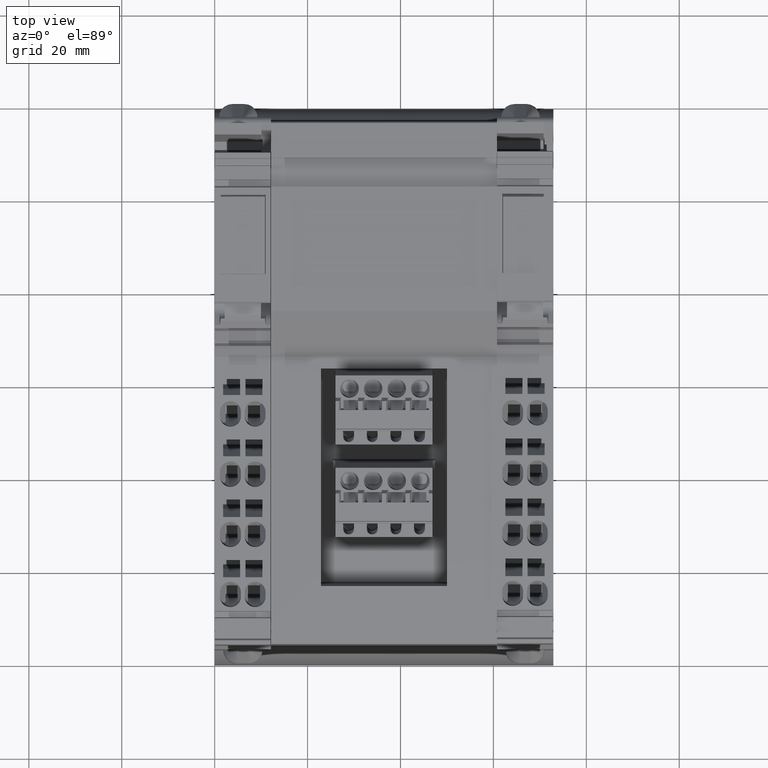
[diagram: clean part render]
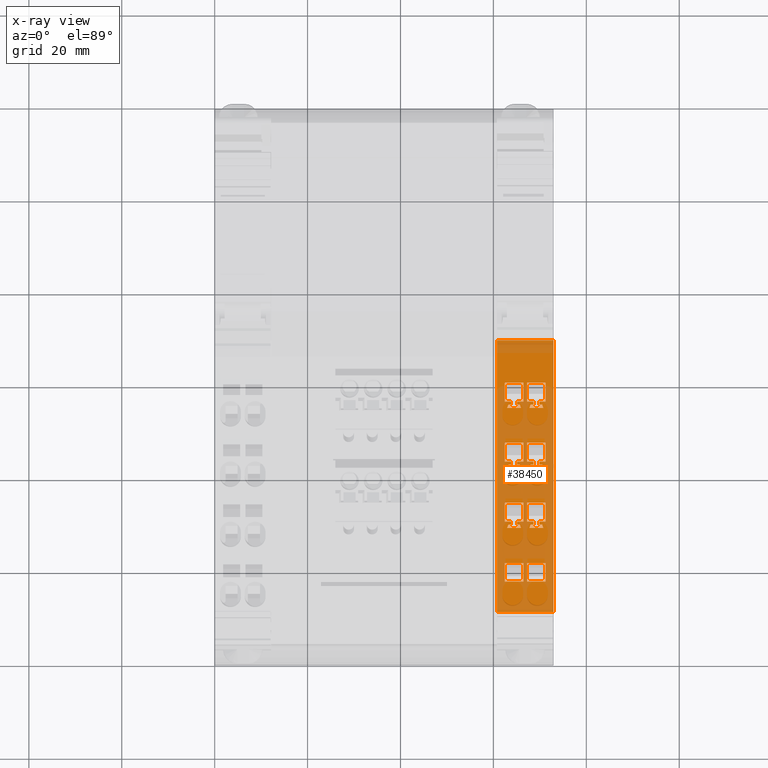
[diagram: x-ray — body ghosted, one internal face saturated and labeled with its STEP entity id]
A machine part, top view, then the same camera in x-ray: the body is ghosted and one INTERNAL B-rep face — a face not visible from any outside direction — is saturated and labeled: STEP entity #38450.
In plain terms, the highlighted planar face has unit normal (0, -0.1305, 0.9914).
Its self-contained STEP definition (entity closure, byte-faithful):
#5660=CARTESIAN_POINT('',(-78.769291021743,-58.1029388513726,
46.7999999999999));
#5670=VERTEX_POINT('',#5660);
#5700=CARTESIAN_POINT('',(0.0062482952954781,-47.7319423514905,
46.7999999999999));
#5710=DIRECTION('',(0.991444861373811,0.13052619222005,0.));
#5720=VECTOR('',#5710,1.);
#5730=LINE('',#5700,#5720);
#5740=CARTESIAN_POINT('',(-20.2913513139139,-50.4041720350718,
46.7999999999999));
#5750=VERTEX_POINT('',#5740);
#5760=EDGE_CURVE('',#5670,#5750,#5730,.T.);
#13380=CARTESIAN_POINT('',(-20.2913513139139,-50.4041720350718,58.95));
#13390=VERTEX_POINT('',#13380);
#13420=CARTESIAN_POINT('',(-50.2693739044416,-54.3508535818461,58.95));
#13430=DIRECTION('',(-0.991444861373811,-0.13052619222005,
1.55470229805303E-45));
#13440=VECTOR('',#13430,1.);
#13450=LINE('',#13420,#13440);
#13460=CARTESIAN_POINT('',(-78.769291021743,-58.1029388513726,58.95));
#13470=VERTEX_POINT('',#13460);
#13480=EDGE_CURVE('',#13390,#13470,#13450,.T.);
#31560=CARTESIAN_POINT('',(-20.2913513139139,-50.4041720350718,58.95));
#31570=DIRECTION('',(0.,-1.19110369467609E-44,-1.));
#31580=VECTOR('',#31570,1.);
#31590=LINE('',#31560,#31580);
#31600=EDGE_CURVE('',#13390,#5750,#31590,.T.);
#31730=CARTESIAN_POINT('',(-78.769291021743,-58.1029388513725,58.95));
#31740=DIRECTION('',(0.13052619222005,-0.991444861373811,
1.18091363744997E-44));
#31750=DIRECTION('',(-0.991444861373811,-0.13052619222005,
1.55470229805303E-45));
#31760=AXIS2_PLACEMENT_3D('',#31730,#31740,#31750);
#31770=PLANE('',#31760);
#31780=CARTESIAN_POINT('',(-39.7860042064056,-52.9706917779677,58.95));
#31790=DIRECTION('',(-1.81498105661143E-19,-2.38946789176702E-20,-1.));
#31800=VECTOR('',#31790,1.);
#31810=LINE('',#31780,#31800);
#31820=CARTESIAN_POINT('',(-39.7860042064056,-52.9706917779677,49.85));
#31830=VERTEX_POINT('',#31820);
#31840=CARTESIAN_POINT('',(-39.7860042064056,-52.9706917779677,48.5));
#31850=VERTEX_POINT('',#31840);
#31860=EDGE_CURVE('',#31830,#31850,#31810,.T.);
#31870=ORIENTED_EDGE('',*,*,#31860,.T.);
#31880=CARTESIAN_POINT('',(-50.2693739044416,-54.3508535818461,49.85));
#31890=DIRECTION('',(-0.991444861373811,-0.13052619222005,
1.55470229805303E-45));
#31900=VECTOR('',#31890,1.);
#31910=LINE('',#31880,#31900);
#31920=CARTESIAN_POINT('',(-39.0969500277508,-52.8799760743747,49.85));
#31930=VERTEX_POINT('',#31920);
#31940=EDGE_CURVE('',#31930,#31830,#31910,.T.);
#31950=ORIENTED_EDGE('',*,*,#31940,.T.);
#31960=CARTESIAN_POINT('',(-39.0969500277508,-52.8799760743747,58.95));
#31970=DIRECTION('',(1.81498105661143E-19,2.38946789176702E-20,1.));
#31980=VECTOR('',#31970,1.);
#31990=LINE('',#31960,#31980);
#32000=CARTESIAN_POINT('',(-39.0969500277508,-52.8799760743747,49.245));
#32010=VERTEX_POINT('',#32000);
#32020=EDGE_CURVE('',#32010,#31930,#31990,.T.);
#32030=ORIENTED_EDGE('',*,*,#32020,.T.);
#32040=CARTESIAN_POINT('',(-50.2693739044416,-54.3508535818461,
53.1393751709533));
#32050=DIRECTION('',(-0.937065302366578,-0.123366987459046,
0.32663313595824));
#32060=VECTOR('',#32050,1.);
#32070=LINE('',#32040,#32060);
#32080=CARTESIAN_POINT('',(-38.4227675220166,-52.7912182636651,49.01));
#32090=VERTEX_POINT('',#32080);
#32100=EDGE_CURVE('',#32090,#32010,#32070,.T.);
#32110=ORIENTED_EDGE('',*,*,#32100,.T.);
#32120=CARTESIAN_POINT('',(-38.4227675220166,-52.7912182636651,58.95));
#32130=DIRECTION('',(-1.81498105661143E-19,-2.38946789176702E-20,-1.));
#32140=VECTOR('',#32130,1.);
#32150=LINE('',#32120,#32140);
#32160=CARTESIAN_POINT('',(-38.4227675220166,-52.7912182636651,51.99));
#32170=VERTEX_POINT('',#32160);
#32180=EDGE_CURVE('',#32170,#32090,#32150,.T.);
#32190=ORIENTED_EDGE('',*,*,#32180,.T.);
#32200=CARTESIAN_POINT('',(-50.2693739044416,-54.3508535818461,
47.8606248290467));
#32210=DIRECTION('',(0.937065302366578,0.123366987459046,
0.32663313595824));
#32220=VECTOR('',#32210,1.);
#32230=LINE('',#32200,#32220);
#32240=CARTESIAN_POINT('',(-39.0969500277508,-52.8799760743747,51.755));
#32250=VERTEX_POINT('',#32240);
#32260=EDGE_CURVE('',#32250,#32170,#32230,.T.);
#32270=ORIENTED_EDGE('',*,*,#32260,.T.);
#32280=CARTESIAN_POINT('',(-39.0969500277508,-52.8799760743747,58.95));
#32290=DIRECTION('',(1.81498105661143E-19,2.38946789176702E-20,1.));
#32300=VECTOR('',#32290,1.);
#32310=LINE('',#32280,#32300);
#32320=CARTESIAN_POINT('',(-39.0969500277508,-52.8799760743747,51.15));
#32330=VERTEX_POINT('',#32320);
#32340=EDGE_CURVE('',#32330,#32250,#32310,.T.);
#32350=ORIENTED_EDGE('',*,*,#32340,.T.);
#32360=CARTESIAN_POINT('',(-50.2693739044416,-54.3508535818461,51.15));
#32370=DIRECTION('',(0.991444861373811,0.13052619222005,
-1.55470229805303E-45));
#32380=VECTOR('',#32370,1.);
#32390=LINE('',#32360,#32380);
#32400=CARTESIAN_POINT('',(-39.7860042064056,-52.9706917779677,51.15));
#32410=VERTEX_POINT('',#32400);
#32420=EDGE_CURVE('',#32410,#32330,#32390,.T.);
#32430=ORIENTED_EDGE('',*,*,#32420,.T.);
#32440=CARTESIAN_POINT('',(-39.7860042064056,-52.9706917779677,58.95));
#32450=DIRECTION('',(-1.81498105661143E-19,-2.38946789176702E-20,-1.));
#32460=VECTOR('',#32450,1.);
#32470=LINE('',#32440,#32460);
#32480=CARTESIAN_POINT('',(-39.7860042064056,-52.9706917779677,52.5));
#32490=VERTEX_POINT('',#32480);
#32500=EDGE_CURVE('',#32490,#32410,#32470,.T.);
#32510=ORIENTED_EDGE('',*,*,#32500,.T.);
#32520=CARTESIAN_POINT('',(-50.2693739044416,-54.3508535818461,52.5));
#32530=DIRECTION('',(0.991444861373811,0.13052619222005,
-1.55470229805303E-45));
#32540=VECTOR('',#32530,1.);
#32550=LINE('',#32520,#32540);
#32560=CARTESIAN_POINT('',(-43.8119747967507,-53.5007208614,52.5));
#32570=VERTEX_POINT('',#32560);
#32580=EDGE_CURVE('',#32570,#32490,#32550,.T.);
#32590=ORIENTED_EDGE('',*,*,#32580,.T.);
#32600=CARTESIAN_POINT('',(-43.8119747967507,-53.5007208614,58.95));
#32610=DIRECTION('',(1.81498105661143E-19,2.38946789176702E-20,1.));
#32620=VECTOR('',#32610,1.);
#32630=LINE('',#32600,#32620);
#32640=CARTESIAN_POINT('',(-43.8119747967507,-53.5007208614,48.5));
#32650=VERTEX_POINT('',#32640);
#32660=EDGE_CURVE('',#32650,#32570,#32630,.T.);
#32670=ORIENTED_EDGE('',*,*,#32660,.T.);
#32680=CARTESIAN_POINT('',(-50.2693739044416,-54.3508535818461,48.5));
#32690=DIRECTION('',(-0.991444861373811,-0.13052619222005,
1.55470229805303E-45));
#32700=VECTOR('',#32690,1.);
#32710=LINE('',#32680,#32700);
#32720=EDGE_CURVE('',#31850,#32650,#32710,.T.);
#32730=ORIENTED_EDGE('',*,*,#32720,.T.);
#32740=EDGE_LOOP('',(#32730,#32670,#32590,#32510,#32430,#32350,#32270,
#32190,#32110,#32030,#31950,#31870));
#32750=FACE_BOUND('',#32740,.T.);
#32760=CARTESIAN_POINT('',(-51.3115507198762,-54.4880587625257,58.95));
#32770=DIRECTION('',(-1.81498105661143E-19,-2.38946789176702E-20,-1.));
#32780=VECTOR('',#32770,1.);
#32790=LINE('',#32760,#32780);
#32800=CARTESIAN_POINT('',(-51.3115507198762,-54.4880587625257,51.99));
#32810=VERTEX_POINT('',#32800);
#32820=CARTESIAN_POINT('',(-51.3115507198762,-54.4880587625257,49.01));
#32830=VERTEX_POINT('',#32820);
#32840=EDGE_CURVE('',#32810,#32830,#32790,.T.);
#32850=ORIENTED_EDGE('',*,*,#32840,.T.);
#32860=CARTESIAN_POINT('',(-50.2693739044416,-54.3508535818461,
52.3532718878702));
#32870=DIRECTION('',(0.937065302366578,0.123366987459046,
0.32663313595824));
#32880=VECTOR('',#32870,1.);
#32890=LINE('',#32860,#32880);
#32900=CARTESIAN_POINT('',(-51.9857332256104,-54.5768165732354,51.755));
#32910=VERTEX_POINT('',#32900);
#32920=EDGE_CURVE('',#32910,#32810,#32890,.T.);
#32930=ORIENTED_EDGE('',*,*,#32920,.T.);
#32940=CARTESIAN_POINT('',(-51.9857332256104,-54.5768165732354,58.95));
#32950=DIRECTION('',(1.81498105661143E-19,2.38946789176702E-20,1.));
#32960=VECTOR('',#32950,1.);
#32970=LINE('',#32940,#32960);
#32980=CARTESIAN_POINT('',(-51.9857332256104,-54.5768165732354,51.15));
#32990=VERTEX_POINT('',#32980);
#33000=EDGE_CURVE('',#32990,#32910,#32970,.T.);
#33010=ORIENTED_EDGE('',*,*,#33000,.T.);
#33020=CARTESIAN_POINT('',(-50.2693739044416,-54.3508535818461,51.15));
#33030=DIRECTION('',(0.991444861373811,0.13052619222005,
-1.55470229805303E-45));
#33040=VECTOR('',#33030,1.);
#33050=LINE('',#33020,#33040);
#33060=CARTESIAN_POINT('',(-52.6747874042651,-54.6675322768283,51.15));
#33070=VERTEX_POINT('',#33060);
#33080=EDGE_CURVE('',#33070,#32990,#33050,.T.);
#33090=ORIENTED_EDGE('',*,*,#33080,.T.);
#33100=CARTESIAN_POINT('',(-52.6747874042651,-54.6675322768283,58.95));
#33110=DIRECTION('',(-1.81498105661143E-19,-2.38946789176702E-20,-1.));
#33120=VECTOR('',#33110,1.);
#33130=LINE('',#33100,#33120);
#33140=CARTESIAN_POINT('',(-52.6747874042651,-54.6675322768283,52.5));
#33150=VERTEX_POINT('',#33140);
#33160=EDGE_CURVE('',#33150,#33070,#33130,.T.);
#33170=ORIENTED_EDGE('',*,*,#33160,.T.);
#33180=CARTESIAN_POINT('',(-50.2693739044416,-54.3508535818461,52.5));
#33190=DIRECTION('',(0.991444861373811,0.13052619222005,
-1.55470229805303E-45));
#33200=VECTOR('',#33190,1.);
#33210=LINE('',#33180,#33200);
#33220=CARTESIAN_POINT('',(-56.7007579946103,-55.1975613602606,52.5));
#33230=VERTEX_POINT('',#33220);
#33240=EDGE_CURVE('',#33230,#33150,#33210,.T.);
#33250=ORIENTED_EDGE('',*,*,#33240,.T.);
#33260=CARTESIAN_POINT('',(-56.7007579946103,-55.1975613602606,58.95));
#33270=DIRECTION('',(1.81498105661143E-19,2.38946789176702E-20,1.));
#33280=VECTOR('',#33270,1.);
#33290=LINE('',#33260,#33280);
#33300=CARTESIAN_POINT('',(-56.7007579946103,-55.1975613602606,48.5));
#33310=VERTEX_POINT('',#33300);
#33320=EDGE_CURVE('',#33310,#33230,#33290,.T.);
#33330=ORIENTED_EDGE('',*,*,#33320,.T.);
#33340=CARTESIAN_POINT('',(-50.2693739044416,-54.3508535818461,48.5));
#33350=DIRECTION('',(-0.991444861373811,-0.13052619222005,
1.55470229805303E-45));
#33360=VECTOR('',#33350,1.);
#33370=LINE('',#33340,#33360);
#33380=CARTESIAN_POINT('',(-52.6747874042652,-54.6675322768283,48.5));
#33390=VERTEX_POINT('',#33380);
#33400=EDGE_CURVE('',#33390,#33310,#33370,.T.);
#33410=ORIENTED_EDGE('',*,*,#33400,.T.);
#33420=CARTESIAN_POINT('',(-52.6747874042652,-54.6675322768283,58.95));
#33430=DIRECTION('',(-1.81498105661143E-19,-2.38946789176702E-20,-1.));
#33440=VECTOR('',#33430,1.);
#33450=LINE('',#33420,#33440);
#33460=CARTESIAN_POINT('',(-52.6747874042652,-54.6675322768283,49.85));
#33470=VERTEX_POINT('',#33460);
#33480=EDGE_CURVE('',#33470,#33390,#33450,.T.);
#33490=ORIENTED_EDGE('',*,*,#33480,.T.);
#33500=CARTESIAN_POINT('',(-50.2693739044416,-54.3508535818461,49.85));
#33510=DIRECTION('',(-0.991444861373811,-0.13052619222005,
1.55470229805303E-45));
#33520=VECTOR('',#33510,1.);
#33530=LINE('',#33500,#33520);
#33540=CARTESIAN_POINT('',(-51.9857332256104,-54.5768165732354,49.85));
#33550=VERTEX_POINT('',#33540);
#33560=EDGE_CURVE('',#33550,#33470,#33530,.T.);
#33570=ORIENTED_EDGE('',*,*,#33560,.T.);
#33580=CARTESIAN_POINT('',(-51.9857332256104,-54.5768165732354,58.95));
#33590=DIRECTION('',(1.81498105661143E-19,2.38946789176702E-20,1.));
#33600=VECTOR('',#33590,1.);
#33610=LINE('',#33580,#33600);
#33620=CARTESIAN_POINT('',(-51.9857332256104,-54.5768165732354,49.245));
#33630=VERTEX_POINT('',#33620);
#33640=EDGE_CURVE('',#33630,#33550,#33610,.T.);
#33650=ORIENTED_EDGE('',*,*,#33640,.T.);
#33660=CARTESIAN_POINT('',(-50.2693739044416,-54.3508535818461,
48.6467281121298));
#33670=DIRECTION('',(-0.937065302366578,-0.123366987459046,
0.32663313595824));
#33680=VECTOR('',#33670,1.);
#33690=LINE('',#33660,#33680);
#33700=EDGE_CURVE('',#32830,#33630,#33690,.T.);
#33710=ORIENTED_EDGE('',*,*,#33700,.T.);
#33720=EDGE_LOOP('',(#33710,#33650,#33570,#33490,#33410,#33330,#33250,
#33170,#33090,#33010,#32930,#32850));
#33730=FACE_BOUND('',#33720,.T.);
#33740=CARTESIAN_POINT('',(-30.9231915988912,-51.8038803625393,58.95));
#33750=DIRECTION('',(1.81498105661143E-19,2.38946789176702E-20,1.));
#33760=VECTOR('',#33750,1.);
#33770=LINE('',#33740,#33760);
#33780=CARTESIAN_POINT('',(-30.9231915988912,-51.8038803625393,53.3));
#33790=VERTEX_POINT('',#33780);
#33800=CARTESIAN_POINT('',(-30.9231915988912,-51.8038803625393,57.3));
#33810=VERTEX_POINT('',#33800);
#33820=EDGE_CURVE('',#33790,#33810,#33770,.T.);
#33830=ORIENTED_EDGE('',*,*,#33820,.T.);
#33840=CARTESIAN_POINT('',(-50.2693739044416,-54.3508535818461,53.3));
#33850=DIRECTION('',(-0.991444861373811,-0.13052619222005,
1.55470229805303E-45));
#33860=VECTOR('',#33850,1.);
#33870=LINE('',#33840,#33860);
#33880=CARTESIAN_POINT('',(-26.897221008546,-51.273851279107,53.3));
#33890=VERTEX_POINT('',#33880);
#33900=EDGE_CURVE('',#33890,#33790,#33870,.T.);
#33910=ORIENTED_EDGE('',*,*,#33900,.T.);
#33920=CARTESIAN_POINT('',(-26.897221008546,-51.273851279107,58.95));
#33930=DIRECTION('',(-1.81498105661143E-19,-2.38946789176702E-20,-1.));
#33940=VECTOR('',#33930,1.);
#33950=LINE('',#33920,#33940);
#33960=CARTESIAN_POINT('',(-26.897221008546,-51.273851279107,57.3));
#33970=VERTEX_POINT('',#33960);
#33980=EDGE_CURVE('',#33970,#33890,#33950,.T.);
#33990=ORIENTED_EDGE('',*,*,#33980,.T.);
#34000=CARTESIAN_POINT('',(-50.2693739044416,-54.3508535818461,57.3));
#34010=DIRECTION('',(0.991444861373811,0.13052619222005,
-1.55470229805303E-45));
#34020=VECTOR('',#34010,1.);
#34030=LINE('',#34000,#34020);
#34040=EDGE_CURVE('',#33810,#33970,#34030,.T.);
#34050=ORIENTED_EDGE('',*,*,#34040,.T.);
#34060=EDGE_LOOP('',(#34050,#33990,#33910,#33830));
#34070=FACE_BOUND('',#34060,.T.);
#34080=CARTESIAN_POINT('',(-50.2693739044416,-54.3508535818461,
44.1540810533063));
#34090=DIRECTION('',(-0.937065302366578,-0.123366987459046,
0.32663313595824));
#34100=VECTOR('',#34090,1.);
#34110=LINE('',#34080,#34100);
#34120=CARTESIAN_POINT('',(-64.2003339177356,-56.1848992613864,49.01));
#34130=VERTEX_POINT('',#34120);
#34140=CARTESIAN_POINT('',(-64.8745164234699,-56.273657072096,49.245));
#34150=VERTEX_POINT('',#34140);
#34160=EDGE_CURVE('',#34130,#34150,#34110,.T.);
#34170=ORIENTED_EDGE('',*,*,#34160,.T.);
#34180=CARTESIAN_POINT('',(-64.2003339177356,-56.1848992613864,58.95));
#34190=DIRECTION('',(-1.81498105661143E-19,-2.38946789176702E-20,-1.));
#34200=VECTOR('',#34190,1.);
#34210=LINE('',#34180,#34200);
#34220=CARTESIAN_POINT('',(-64.2003339177356,-56.1848992613864,51.99));
#34230=VERTEX_POINT('',#34220);
#34240=EDGE_CURVE('',#34230,#34130,#34210,.T.);
#34250=ORIENTED_EDGE('',*,*,#34240,.T.);
#34260=CARTESIAN_POINT('',(-50.2693739044416,-54.3508535818461,
56.8459189466936));
#34270=DIRECTION('',(0.937065302366578,0.123366987459046,
0.32663313595824));
#34280=VECTOR('',#34270,1.);
#34290=LINE('',#34260,#34280);
#34300=CARTESIAN_POINT('',(-64.8745164234699,-56.273657072096,51.755));
#34310=VERTEX_POINT('',#34300);
#34320=EDGE_CURVE('',#34310,#34230,#34290,.T.);
#34330=ORIENTED_EDGE('',*,*,#34320,.T.);
#34340=CARTESIAN_POINT('',(-64.8745164234699,-56.273657072096,58.95));
#34350=DIRECTION('',(1.81498105661143E-19,2.38946789176702E-20,1.));
#34360=VECTOR('',#34350,1.);
#34370=LINE('',#34340,#34360);
#34380=CARTESIAN_POINT('',(-64.8745164234699,-56.273657072096,51.15));
#34390=VERTEX_POINT('',#34380);
#34400=EDGE_CURVE('',#34390,#34310,#34370,.T.);
#34410=ORIENTED_EDGE('',*,*,#34400,.T.);
#34420=CARTESIAN_POINT('',(-50.2693739044416,-54.3508535818461,51.15));
#34430=DIRECTION('',(0.991444861373811,0.13052619222005,
-1.55470229805303E-45));
#34440=VECTOR('',#34430,1.);
#34450=LINE('',#34420,#34440);
#34460=CARTESIAN_POINT('',(-65.5635706021247,-56.364372775689,51.15));
#34470=VERTEX_POINT('',#34460);
#34480=EDGE_CURVE('',#34470,#34390,#34450,.T.);
#34490=ORIENTED_EDGE('',*,*,#34480,.T.);
#34500=CARTESIAN_POINT('',(-65.5635706021247,-56.364372775689,58.95));
#34510=DIRECTION('',(-1.81498105661143E-19,-2.38946789176702E-20,-1.));
#34520=VECTOR('',#34510,1.);
#34530=LINE('',#34500,#34520);
#34540=CARTESIAN_POINT('',(-65.5635706021247,-56.364372775689,52.5));
#34550=VERTEX_POINT('',#34540);
#34560=EDGE_CURVE('',#34550,#34470,#34530,.T.);
#34570=ORIENTED_EDGE('',*,*,#34560,.T.);
#34580=CARTESIAN_POINT('',(-50.2693739044416,-54.3508535818461,52.5));
#34590=DIRECTION('',(0.991444861373811,0.13052619222005,
-1.55470229805303E-45));
#34600=VECTOR('',#34590,1.);
#34610=LINE('',#34580,#34600);
#34620=CARTESIAN_POINT('',(-69.5895411924698,-56.8944018591213,52.5));
#34630=VERTEX_POINT('',#34620);
#34640=EDGE_CURVE('',#34630,#34550,#34610,.T.);
#34650=ORIENTED_EDGE('',*,*,#34640,.T.);
#34660=CARTESIAN_POINT('',(-69.5895411924698,-56.8944018591213,58.95));
#34670=DIRECTION('',(1.81498105661143E-19,2.38946789176702E-20,1.));
#34680=VECTOR('',#34670,1.);
#34690=LINE('',#34660,#34680);
#34700=CARTESIAN_POINT('',(-69.5895411924698,-56.8944018591213,48.5));
#34710=VERTEX_POINT('',#34700);
#34720=EDGE_CURVE('',#34710,#34630,#34690,.T.);
#34730=ORIENTED_EDGE('',*,*,#34720,.T.);
#34740=CARTESIAN_POINT('',(-50.2693739044416,-54.3508535818461,48.5));
#34750=DIRECTION('',(-0.991444861373811,-0.13052619222005,
1.55470229805303E-45));
#34760=VECTOR('',#34750,1.);
#34770=LINE('',#34740,#34760);
#34780=CARTESIAN_POINT('',(-65.5635706021247,-56.364372775689,48.5));
#34790=VERTEX_POINT('',#34780);
#34800=EDGE_CURVE('',#34790,#34710,#34770,.T.);
#34810=ORIENTED_EDGE('',*,*,#34800,.T.);
#34820=CARTESIAN_POINT('',(-65.5635706021247,-56.364372775689,58.95));
#34830=DIRECTION('',(-1.81498105661143E-19,-2.38946789176702E-20,-1.));
#34840=VECTOR('',#34830,1.);
#34850=LINE('',#34820,#34840);
#34860=CARTESIAN_POINT('',(-65.5635706021247,-56.364372775689,49.85));
#34870=VERTEX_POINT('',#34860);
#34880=EDGE_CURVE('',#34870,#34790,#34850,.T.);
#34890=ORIENTED_EDGE('',*,*,#34880,.T.);
#34900=CARTESIAN_POINT('',(-50.2693739044416,-54.3508535818461,49.85));
#34910=DIRECTION('',(-0.991444861373811,-0.13052619222005,
1.55470229805303E-45));
#34920=VECTOR('',#34910,1.);
#34930=LINE('',#34900,#34920);
#34940=CARTESIAN_POINT('',(-64.8745164234699,-56.273657072096,49.85));
#34950=VERTEX_POINT('',#34940);
#34960=EDGE_CURVE('',#34950,#34870,#34930,.T.);
#34970=ORIENTED_EDGE('',*,*,#34960,.T.);
#34980=CARTESIAN_POINT('',(-64.8745164234699,-56.273657072096,58.95));
#34990=DIRECTION('',(1.81498105661143E-19,2.38946789176702E-20,1.));
#35000=VECTOR('',#34990,1.);
#35010=LINE('',#34980,#35000);
#35020=EDGE_CURVE('',#34150,#34950,#35010,.T.);
#35030=ORIENTED_EDGE('',*,*,#35020,.T.);
#35040=EDGE_LOOP('',(#35030,#34970,#34890,#34810,#34730,#34650,#34570,
#34490,#34410,#34330,#34250,#34170));
#35050=FACE_BOUND('',#35040,.T.);
#35060=CARTESIAN_POINT('',(-50.2693739044416,-54.3508535818461,48.5));
#35070=DIRECTION('',(-0.991444861373811,-0.13052619222005,
1.55470229805303E-45));
#35080=VECTOR('',#35070,1.);
#35090=LINE('',#35060,#35080);
#35100=CARTESIAN_POINT('',(-26.8972210085461,-51.273851279107,48.5));
#35110=VERTEX_POINT('',#35100);
#35120=CARTESIAN_POINT('',(-30.9231915988912,-51.8038803625393,48.5));
#35130=VERTEX_POINT('',#35120);
#35140=EDGE_CURVE('',#35110,#35130,#35090,.T.);
#35150=ORIENTED_EDGE('',*,*,#35140,.T.);
#35160=CARTESIAN_POINT('',(-26.8972210085461,-51.273851279107,58.95));
#35170=DIRECTION('',(-1.81498105661143E-19,-2.38946789176702E-20,-1.));
#35180=VECTOR('',#35170,1.);
#35190=LINE('',#35160,#35180);
#35200=CARTESIAN_POINT('',(-26.8972210085461,-51.273851279107,52.5));
#35210=VERTEX_POINT('',#35200);
#35220=EDGE_CURVE('',#35210,#35110,#35190,.T.);
#35230=ORIENTED_EDGE('',*,*,#35220,.T.);
#35240=CARTESIAN_POINT('',(-50.2693739044416,-54.3508535818461,52.5));
#35250=DIRECTION('',(0.991444861373811,0.13052619222005,
-1.55470229805303E-45));
#35260=VECTOR('',#35250,1.);
#35270=LINE('',#35240,#35260);
#35280=CARTESIAN_POINT('',(-30.9231915988912,-51.8038803625393,52.5));
#35290=VERTEX_POINT('',#35280);
#35300=EDGE_CURVE('',#35290,#35210,#35270,.T.);
#35310=ORIENTED_EDGE('',*,*,#35300,.T.);
#35320=CARTESIAN_POINT('',(-30.9231915988912,-51.8038803625393,58.95));
#35330=DIRECTION('',(1.81498105661143E-19,2.38946789176702E-20,1.));
#35340=VECTOR('',#35330,1.);
#35350=LINE('',#35320,#35340);
#35360=EDGE_CURVE('',#35130,#35290,#35350,.T.);
#35370=ORIENTED_EDGE('',*,*,#35360,.T.);
#35380=EDGE_LOOP('',(#35370,#35310,#35230,#35150));
#35390=FACE_BOUND('',#35380,.T.);
#35400=CARTESIAN_POINT('',(-65.5635706021247,-56.364372775689,58.95));
#35410=DIRECTION('',(-1.81498105661143E-19,-2.38946789176702E-20,-1.));
#35420=VECTOR('',#35410,1.);
#35430=LINE('',#35400,#35420);
#35440=CARTESIAN_POINT('',(-65.5635706021247,-56.364372775689,54.65));
#35450=VERTEX_POINT('',#35440);
#35460=CARTESIAN_POINT('',(-65.5635706021247,-56.364372775689,53.3));
#35470=VERTEX_POINT('',#35460);
#35480=EDGE_CURVE('',#35450,#35470,#35430,.T.);
#35490=ORIENTED_EDGE('',*,*,#35480,.T.);
#35500=CARTESIAN_POINT('',(-50.2693739044416,-54.3508535818461,54.65));
#35510=DIRECTION('',(-0.991444861373811,-0.13052619222005,
1.55470229805303E-45));
#35520=VECTOR('',#35510,1.);
#35530=LINE('',#35500,#35520);
#35540=CARTESIAN_POINT('',(-64.8745164234699,-56.273657072096,54.65));
#35550=VERTEX_POINT('',#35540);
#35560=EDGE_CURVE('',#35550,#35450,#35530,.T.);
#35570=ORIENTED_EDGE('',*,*,#35560,.T.);
#35580=CARTESIAN_POINT('',(-64.8745164234699,-56.273657072096,58.95));
#35590=DIRECTION('',(1.81498105661143E-19,2.38946789176702E-20,1.));
#35600=VECTOR('',#35590,1.);
#35610=LINE('',#35580,#35600);
#35620=CARTESIAN_POINT('',(-64.8745164234699,-56.273657072096,54.045));
#35630=VERTEX_POINT('',#35620);
#35640=EDGE_CURVE('',#35630,#35550,#35610,.T.);
#35650=ORIENTED_EDGE('',*,*,#35640,.T.);
#35660=CARTESIAN_POINT('',(-50.2693739044416,-54.3508535818461,
48.9540810533063));
#35670=DIRECTION('',(-0.937065302366578,-0.123366987459046,
0.32663313595824));
#35680=VECTOR('',#35670,1.);
#35690=LINE('',#35660,#35680);
#35700=CARTESIAN_POINT('',(-64.2003339177357,-56.1848992613864,53.81));
#35710=VERTEX_POINT('',#35700);
#35720=EDGE_CURVE('',#35710,#35630,#35690,.T.);
#35730=ORIENTED_EDGE('',*,*,#35720,.T.);
#35740=CARTESIAN_POINT('',(-64.2003339177357,-56.1848992613864,58.95));
#35750=DIRECTION('',(-1.81498105661143E-19,-2.38946789176702E-20,-1.));
#35760=VECTOR('',#35750,1.);
#35770=LINE('',#35740,#35760);
#35780=CARTESIAN_POINT('',(-64.2003339177357,-56.1848992613864,56.79));
#35790=VERTEX_POINT('',#35780);
#35800=EDGE_CURVE('',#35790,#35710,#35770,.T.);
#35810=ORIENTED_EDGE('',*,*,#35800,.T.);
#35820=CARTESIAN_POINT('',(-50.2693739044416,-54.3508535818461,
61.6459189466936));
#35830=DIRECTION('',(0.937065302366578,0.123366987459046,
0.32663313595824));
#35840=VECTOR('',#35830,1.);
#35850=LINE('',#35820,#35840);
#35860=CARTESIAN_POINT('',(-64.8745164234699,-56.273657072096,56.555));
#35870=VERTEX_POINT('',#35860);
#35880=EDGE_CURVE('',#35870,#35790,#35850,.T.);
#35890=ORIENTED_EDGE('',*,*,#35880,.T.);
#35900=CARTESIAN_POINT('',(-64.8745164234699,-56.273657072096,58.95));
#35910=DIRECTION('',(1.81498105661143E-19,2.38946789176702E-20,1.));
#35920=VECTOR('',#35910,1.);
#35930=LINE('',#35900,#35920);
#35940=CARTESIAN_POINT('',(-64.8745164234699,-56.273657072096,55.95));
#35950=VERTEX_POINT('',#35940);
#35960=EDGE_CURVE('',#35950,#35870,#35930,.T.);
#35970=ORIENTED_EDGE('',*,*,#35960,.T.);
#35980=CARTESIAN_POINT('',(-50.2693739044416,-54.3508535818461,55.95));
#35990=DIRECTION('',(0.991444861373811,0.13052619222005,
-1.55470229805303E-45));
#36000=VECTOR('',#35990,1.);
#36010=LINE('',#35980,#36000);
#36020=CARTESIAN_POINT('',(-65.5635706021247,-56.364372775689,55.95));
#36030=VERTEX_POINT('',#36020);
#36040=EDGE_CURVE('',#36030,#35950,#36010,.T.);
#36050=ORIENTED_EDGE('',*,*,#36040,.T.);
#36060=CARTESIAN_POINT('',(-65.5635706021247,-56.364372775689,58.95));
#36070=DIRECTION('',(-1.81498105661143E-19,-2.38946789176702E-20,-1.));
#36080=VECTOR('',#36070,1.);
#36090=LINE('',#36060,#36080);
#36100=CARTESIAN_POINT('',(-65.5635706021247,-56.364372775689,57.3));
#36110=VERTEX_POINT('',#36100);
#36120=EDGE_CURVE('',#36110,#36030,#36090,.T.);
#36130=ORIENTED_EDGE('',*,*,#36120,.T.);
#36140=CARTESIAN_POINT('',(-50.2693739044416,-54.3508535818461,57.3));
#36150=DIRECTION('',(0.991444861373811,0.13052619222005,
-1.55470229805303E-45));
#36160=VECTOR('',#36150,1.);
#36170=LINE('',#36140,#36160);
#36180=CARTESIAN_POINT('',(-69.5895411924698,-56.8944018591213,57.3));
#36190=VERTEX_POINT('',#36180);
#36200=EDGE_CURVE('',#36190,#36110,#36170,.T.);
#36210=ORIENTED_EDGE('',*,*,#36200,.T.);
#36220=CARTESIAN_POINT('',(-69.5895411924698,-56.8944018591213,58.95));
#36230=DIRECTION('',(1.81498105661143E-19,2.38946789176702E-20,1.));
#36240=VECTOR('',#36230,1.);
#36250=LINE('',#36220,#36240);
#36260=CARTESIAN_POINT('',(-69.5895411924698,-56.8944018591213,53.3));
#36270=VERTEX_POINT('',#36260);
#36280=EDGE_CURVE('',#36270,#36190,#36250,.T.);
#36290=ORIENTED_EDGE('',*,*,#36280,.T.);
#36300=CARTESIAN_POINT('',(-50.2693739044416,-54.3508535818461,53.3));
#36310=DIRECTION('',(-0.991444861373811,-0.13052619222005,
1.55470229805303E-45));
#36320=VECTOR('',#36310,1.);
#36330=LINE('',#36300,#36320);
#36340=EDGE_CURVE('',#35470,#36270,#36330,.T.);
#36350=ORIENTED_EDGE('',*,*,#36340,.T.);
#36360=EDGE_LOOP('',(#36350,#36290,#36210,#36130,#36050,#35970,#35890,
#35810,#35730,#35650,#35570,#35490));
#36370=FACE_BOUND('',#36360,.T.);
#36380=CARTESIAN_POINT('',(-50.2693739044416,-54.3508535818461,54.65));
#36390=DIRECTION('',(-0.991444861373811,-0.13052619222005,
1.55470229805303E-45));
#36400=VECTOR('',#36390,1.);
#36410=LINE('',#36380,#36400);
#36420=CARTESIAN_POINT('',(-51.9857332256103,-54.5768165732354,54.65));
#36430=VERTEX_POINT('',#36420);
#36440=CARTESIAN_POINT('',(-52.6747874042652,-54.6675322768283,54.65));
#36450=VERTEX_POINT('',#36440);
#36460=EDGE_CURVE('',#36430,#36450,#36410,.T.);
#36470=ORIENTED_EDGE('',*,*,#36460,.T.);
#36480=CARTESIAN_POINT('',(-51.9857332256103,-54.5768165732354,58.95));
#36490=DIRECTION('',(1.81498105661143E-19,2.38946789176702E-20,1.));
#36500=VECTOR('',#36490,1.);
#36510=LINE('',#36480,#36500);
#36520=CARTESIAN_POINT('',(-51.9857332256103,-54.5768165732354,54.045));
#36530=VERTEX_POINT('',#36520);
#36540=EDGE_CURVE('',#36530,#36430,#36510,.T.);
#36550=ORIENTED_EDGE('',*,*,#36540,.T.);
#36560=CARTESIAN_POINT('',(-50.2693739044416,-54.3508535818461,
53.4467281121298));
#36570=DIRECTION('',(-0.937065302366578,-0.123366987459046,
0.32663313595824));
#36580=VECTOR('',#36570,1.);
#36590=LINE('',#36560,#36580);
#36600=CARTESIAN_POINT('',(-51.3115507198762,-54.4880587625257,53.81));
#36610=VERTEX_POINT('',#36600);
#36620=EDGE_CURVE('',#36610,#36530,#36590,.T.);
#36630=ORIENTED_EDGE('',*,*,#36620,.T.);
#36640=CARTESIAN_POINT('',(-51.3115507198762,-54.4880587625257,58.95));
#36650=DIRECTION('',(-1.81498105661143E-19,-2.38946789176702E-20,-1.));
#36660=VECTOR('',#36650,1.);
#36670=LINE('',#36640,#36660);
#36680=CARTESIAN_POINT('',(-51.3115507198762,-54.4880587625257,56.79));
#36690=VERTEX_POINT('',#36680);
#36700=EDGE_CURVE('',#36690,#36610,#36670,.T.);
#36710=ORIENTED_EDGE('',*,*,#36700,.T.);
#36720=CARTESIAN_POINT('',(-50.2693739044416,-54.3508535818461,
57.1532718878702));
#36730=DIRECTION('',(0.937065302366578,0.123366987459046,
0.32663313595824));
#36740=VECTOR('',#36730,1.);
#36750=LINE('',#36720,#36740);
#36760=CARTESIAN_POINT('',(-51.9857332256104,-54.5768165732354,56.555));
#36770=VERTEX_POINT('',#36760);
#36780=EDGE_CURVE('',#36770,#36690,#36750,.T.);
#36790=ORIENTED_EDGE('',*,*,#36780,.T.);
#36800=CARTESIAN_POINT('',(-51.9857332256104,-54.5768165732354,58.95));
#36810=DIRECTION('',(1.81498105661143E-19,2.38946789176702E-20,1.));
#36820=VECTOR('',#36810,1.);
#36830=LINE('',#36800,#36820);
#36840=CARTESIAN_POINT('',(-51.9857332256104,-54.5768165732354,55.95));
#36850=VERTEX_POINT('',#36840);
#36860=EDGE_CURVE('',#36850,#36770,#36830,.T.);
#36870=ORIENTED_EDGE('',*,*,#36860,.T.);
#36880=CARTESIAN_POINT('',(-50.2693739044416,-54.3508535818461,55.95));
#36890=DIRECTION('',(0.991444861373811,0.13052619222005,
-1.55470229805303E-45));
#36900=VECTOR('',#36890,1.);
#36910=LINE('',#36880,#36900);
#36920=CARTESIAN_POINT('',(-52.6747874042652,-54.6675322768283,55.95));
#36930=VERTEX_POINT('',#36920);
#36940=EDGE_CURVE('',#36930,#36850,#36910,.T.);
#36950=ORIENTED_EDGE('',*,*,#36940,.T.);
#36960=CARTESIAN_POINT('',(-52.6747874042652,-54.6675322768283,58.95));
#36970=DIRECTION('',(-1.81498105661143E-19,-2.38946789176702E-20,-1.));
#36980=VECTOR('',#36970,1.);
#36990=LINE('',#36960,#36980);
#37000=CARTESIAN_POINT('',(-52.6747874042652,-54.6675322768283,57.3));
#37010=VERTEX_POINT('',#37000);
#37020=EDGE_CURVE('',#37010,#36930,#36990,.T.);
#37030=ORIENTED_EDGE('',*,*,#37020,.T.);
#37040=CARTESIAN_POINT('',(-50.2693739044416,-54.3508535818461,57.3));
#37050=DIRECTION('',(0.991444861373811,0.13052619222005,
-1.55470229805303E-45));
#37060=VECTOR('',#37050,1.);
#37070=LINE('',#37040,#37060);
#37080=CARTESIAN_POINT('',(-56.7007579946103,-55.1975613602606,57.3));
#37090=VERTEX_POINT('',#37080);
#37100=EDGE_CURVE('',#37090,#37010,#37070,.T.);
#37110=ORIENTED_EDGE('',*,*,#37100,.T.);
#37120=CARTESIAN_POINT('',(-56.7007579946103,-55.1975613602606,58.95));
#37130=DIRECTION('',(1.81498105661143E-19,2.38946789176702E-20,1.));
#37140=VECTOR('',#37130,1.);
#37150=LINE('',#37120,#37140);
#37160=CARTESIAN_POINT('',(-56.7007579946103,-55.1975613602606,53.3));
#37170=VERTEX_POINT('',#37160);
#37180=EDGE_CURVE('',#37170,#37090,#37150,.T.);
#37190=ORIENTED_EDGE('',*,*,#37180,.T.);
#37200=CARTESIAN_POINT('',(-50.2693739044416,-54.3508535818461,53.3));
#37210=DIRECTION('',(-0.991444861373811,-0.13052619222005,
1.55470229805303E-45));
#37220=VECTOR('',#37210,1.);
#37230=LINE('',#37200,#37220);
#37240=CARTESIAN_POINT('',(-52.6747874042652,-54.6675322768283,53.3));
#37250=VERTEX_POINT('',#37240);
#37260=EDGE_CURVE('',#37250,#37170,#37230,.T.);
#37270=ORIENTED_EDGE('',*,*,#37260,.T.);
#37280=CARTESIAN_POINT('',(-52.6747874042652,-54.6675322768283,58.95));
#37290=DIRECTION('',(-1.81498105661143E-19,-2.38946789176702E-20,-1.));
#37300=VECTOR('',#37290,1.);
#37310=LINE('',#37280,#37300);
#37320=EDGE_CURVE('',#36450,#37250,#37310,.T.);
#37330=ORIENTED_EDGE('',*,*,#37320,.T.);
#37340=EDGE_LOOP('',(#37330,#37270,#37190,#37110,#37030,#36950,#36870,
#36790,#36710,#36630,#36550,#36470));
#37350=FACE_BOUND('',#37340,.T.);
#37360=CARTESIAN_POINT('',(-39.0969500277508,-52.8799760743747,58.95));
#37370=DIRECTION('',(1.81498105661143E-19,2.38946789176702E-20,1.));
#37380=VECTOR('',#37370,1.);
#37390=LINE('',#37360,#37380);
#37400=CARTESIAN_POINT('',(-39.0969500277508,-52.8799760743747,55.95));
#37410=VERTEX_POINT('',#37400);
#37420=CARTESIAN_POINT('',(-39.0969500277508,-52.8799760743747,56.555));
#37430=VERTEX_POINT('',#37420);
#37440=EDGE_CURVE('',#37410,#37430,#37390,.T.);
#37450=ORIENTED_EDGE('',*,*,#37440,.T.);
#37460=CARTESIAN_POINT('',(-50.2693739044416,-54.3508535818461,55.95));
#37470=DIRECTION('',(0.991444861373811,0.13052619222005,
-1.55470229805303E-45));
#37480=VECTOR('',#37470,1.);
#37490=LINE('',#37460,#37480);
#37500=CARTESIAN_POINT('',(-39.7860042064056,-52.9706917779677,55.95));
#37510=VERTEX_POINT('',#37500);
#37520=EDGE_CURVE('',#37510,#37410,#37490,.T.);
#37530=ORIENTED_EDGE('',*,*,#37520,.T.);
#37540=CARTESIAN_POINT('',(-39.7860042064056,-52.9706917779677,58.95));
#37550=DIRECTION('',(-1.81498105661143E-19,-2.38946789176702E-20,-1.));
#37560=VECTOR('',#37550,1.);
#37570=LINE('',#37540,#37560);
#37580=CARTESIAN_POINT('',(-39.7860042064056,-52.9706917779677,57.3));
#37590=VERTEX_POINT('',#37580);
#37600=EDGE_CURVE('',#37590,#37510,#37570,.T.);
#37610=ORIENTED_EDGE('',*,*,#37600,.T.);
#37620=CARTESIAN_POINT('',(-50.2693739044416,-54.3508535818461,57.3));
#37630=DIRECTION('',(0.991444861373811,0.13052619222005,
-1.55470229805303E-45));
#37640=VECTOR('',#37630,1.);
#37650=LINE('',#37620,#37640);
#37660=CARTESIAN_POINT('',(-43.8119747967507,-53.5007208614,57.3));
#37670=VERTEX_POINT('',#37660);
#37680=EDGE_CURVE('',#37670,#37590,#37650,.T.);
#37690=ORIENTED_EDGE('',*,*,#37680,.T.);
#37700=CARTESIAN_POINT('',(-43.8119747967507,-53.5007208614,58.95));
#37710=DIRECTION('',(1.81498105661143E-19,2.38946789176702E-20,1.));
#37720=VECTOR('',#37710,1.);
#37730=LINE('',#37700,#37720);
#37740=CARTESIAN_POINT('',(-43.8119747967507,-53.5007208614,53.3));
#37750=VERTEX_POINT('',#37740);
#37760=EDGE_CURVE('',#37750,#37670,#37730,.T.);
#37770=ORIENTED_EDGE('',*,*,#37760,.T.);
#37780=CARTESIAN_POINT('',(-50.2693739044416,-54.3508535818461,53.3));
#37790=DIRECTION('',(-0.991444861373811,-0.13052619222005,
1.55470229805303E-45));
#37800=VECTOR('',#37790,1.);
#37810=LINE('',#37780,#37800);
#37820=CARTESIAN_POINT('',(-39.7860042064056,-52.9706917779677,53.3));
#37830=VERTEX_POINT('',#37820);
#37840=EDGE_CURVE('',#37830,#37750,#37810,.T.);
#37850=ORIENTED_EDGE('',*,*,#37840,.T.);
#37860=CARTESIAN_POINT('',(-39.7860042064056,-52.9706917779677,58.95));
#37870=DIRECTION('',(-1.81498105661143E-19,-2.38946789176702E-20,-1.));
#37880=VECTOR('',#37870,1.);
#37890=LINE('',#37860,#37880);
#37900=CARTESIAN_POINT('',(-39.7860042064056,-52.9706917779677,54.65));
#37910=VERTEX_POINT('',#37900);
#37920=EDGE_CURVE('',#37910,#37830,#37890,.T.);
#37930=ORIENTED_EDGE('',*,*,#37920,.T.);
#37940=CARTESIAN_POINT('',(-50.2693739044416,-54.3508535818461,54.65));
#37950=DIRECTION('',(-0.991444861373811,-0.13052619222005,
1.55470229805303E-45));
#37960=VECTOR('',#37950,1.);
#37970=LINE('',#37940,#37960);
#37980=CARTESIAN_POINT('',(-39.0969500277508,-52.8799760743747,54.65));
#37990=VERTEX_POINT('',#37980);
#38000=EDGE_CURVE('',#37990,#37910,#37970,.T.);
#38010=ORIENTED_EDGE('',*,*,#38000,.T.);
#38020=CARTESIAN_POINT('',(-39.0969500277508,-52.8799760743747,58.95));
#38030=DIRECTION('',(1.81498105661143E-19,2.38946789176702E-20,1.));
#38040=VECTOR('',#38030,1.);
#38050=LINE('',#38020,#38040);
#38060=CARTESIAN_POINT('',(-39.0969500277508,-52.8799760743747,54.045));
#38070=VERTEX_POINT('',#38060);
#38080=EDGE_CURVE('',#38070,#37990,#38050,.T.);
#38090=ORIENTED_EDGE('',*,*,#38080,.T.);
#38100=CARTESIAN_POINT('',(-50.2693739044416,-54.3508535818461,
57.9393751709533));
#38110=DIRECTION('',(-0.937065302366578,-0.123366987459046,
0.32663313595824));
#38120=VECTOR('',#38110,1.);
#38130=LINE('',#38100,#38120);
#38140=CARTESIAN_POINT('',(-38.4227675220166,-52.7912182636651,53.81));
#38150=VERTEX_POINT('',#38140);
#38160=EDGE_CURVE('',#38150,#38070,#38130,.T.);
#38170=ORIENTED_EDGE('',*,*,#38160,.T.);
#38180=CARTESIAN_POINT('',(-38.4227675220166,-52.7912182636651,58.95));
#38190=DIRECTION('',(-1.81498105661143E-19,-2.38946789176702E-20,-1.));
#38200=VECTOR('',#38190,1.);
#38210=LINE('',#38180,#38200);
#38220=CARTESIAN_POINT('',(-38.4227675220166,-52.7912182636651,56.79));
#38230=VERTEX_POINT('',#38220);
#38240=EDGE_CURVE('',#38230,#38150,#38210,.T.);
#38250=ORIENTED_EDGE('',*,*,#38240,.T.);
#38260=CARTESIAN_POINT('',(-50.2693739044416,-54.3508535818461,
52.6606248290467));
#38270=DIRECTION('',(0.937065302366578,0.123366987459046,
0.32663313595824));
#38280=VECTOR('',#38270,1.);
#38290=LINE('',#38260,#38280);
#38300=EDGE_CURVE('',#37430,#38230,#38290,.T.);
#38310=ORIENTED_EDGE('',*,*,#38300,.T.);
#38320=EDGE_LOOP('',(#38310,#38250,#38170,#38090,#38010,#37930,#37850,
#37770,#37690,#37610,#37530,#37450));
#38330=FACE_BOUND('',#38320,.T.);
#38340=ORIENTED_EDGE('',*,*,#31600,.F.);
#38350=ORIENTED_EDGE('',*,*,#5760,.T.);
#38360=CARTESIAN_POINT('',(-78.769291021743,-58.1029388513726,58.95));
#38370=DIRECTION('',(0.,-1.19110369467609E-44,-1.));
#38380=VECTOR('',#38370,1.);
#38390=LINE('',#38360,#38380);
#38400=EDGE_CURVE('',#13470,#5670,#38390,.T.);
#38410=ORIENTED_EDGE('',*,*,#38400,.T.);
#38420=ORIENTED_EDGE('',*,*,#13480,.T.);
#38430=EDGE_LOOP('',(#38420,#38410,#38350,#38340));
#38440=FACE_OUTER_BOUND('',#38430,.T.);
#38450=ADVANCED_FACE('',(#32750,#33730,#34070,#35050,#35390,#36370,
#37350,#38330,#38440),#31770,.T.);